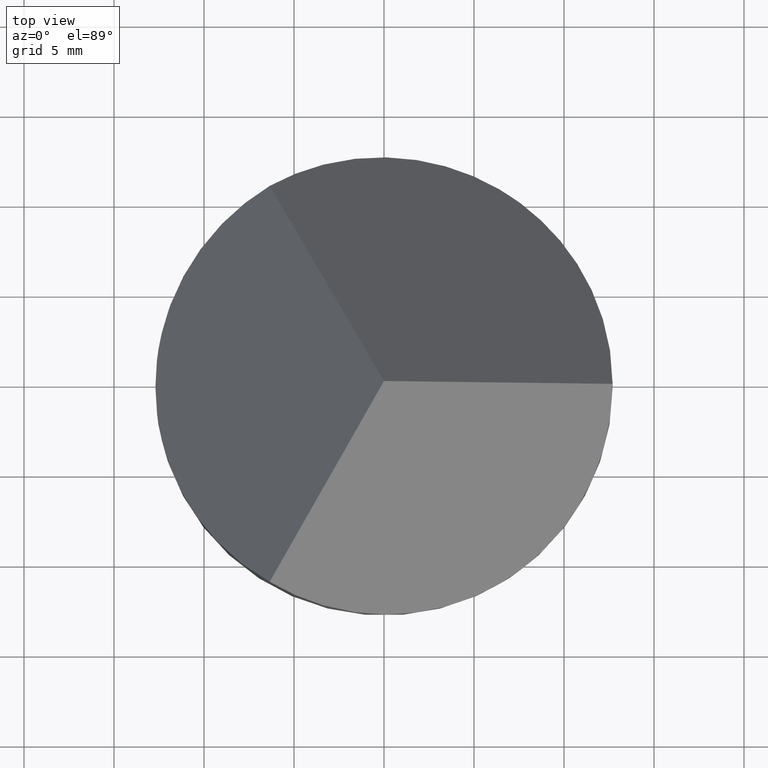
[diagram: clean part render]
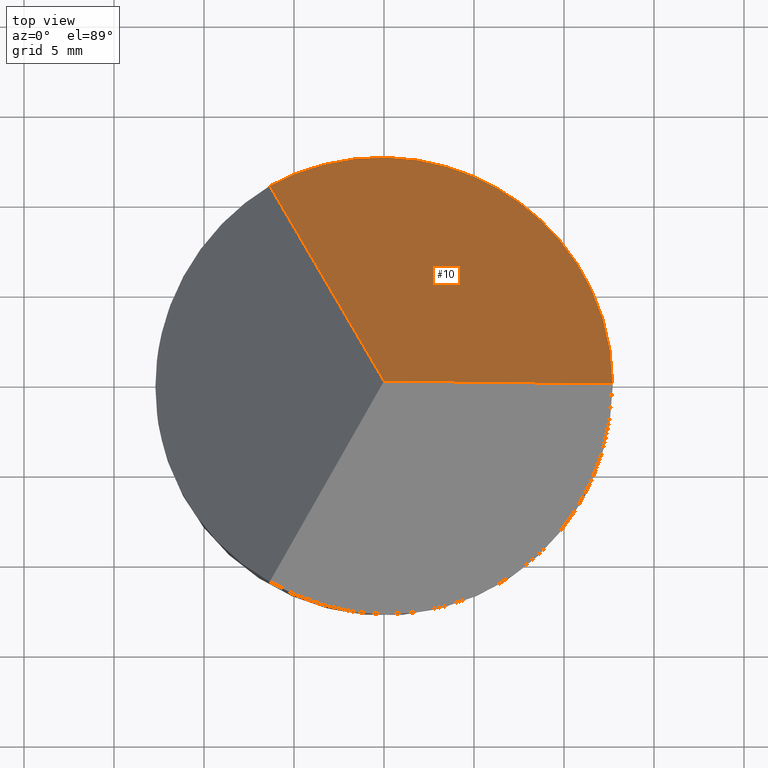
[diagram: same view with one face highlighted and labeled with its STEP entity id]
A machine part, top view. The second image highlights one B-rep face of the part: STEP entity #10.
In plain terms, the highlighted planar face has unit normal (0.4082, 0.7071, 0.5774).
Its self-contained STEP definition (entity closure, byte-faithful):
#10 = ADVANCED_FACE ( 'NONE', ( #264 ), #17, .T. ) ;
#16 = CARTESIAN_POINT ( 'NONE',  ( -6.350000000000017400, 10.99852262806236800, 10.02160896824114100 ) ) ;
#17 = PLANE ( 'NONE',  #119 ) ;
#19 = DIRECTION ( 'NONE',  ( 0.4082200218682777700, 0.7070578185427394100, 0.5774302165486712200 ) ) ;
#21 = DIRECTION ( 'NONE',  ( -0.8165531063768112200, -1.827950131834282300E-016, 0.5772703218305786900 ) ) ;
#35 = LINE ( 'NONE', #55, #161 ) ;
#38 = VERTEX_POINT ( 'NONE', #254 ) ;
#47 = VERTEX_POINT ( 'NONE', #306 ) ;
#48 = CARTESIAN_POINT ( 'NONE',  ( 14.72243186433548900, -8.499999999999966200, 19.00000000000000000 ) ) ;
#55 = CARTESIAN_POINT ( 'NONE',  ( 9.816313587227853100, 1.734723475976807100E-015, 12.06025969476389300 ) ) ;
#89 = VECTOR ( 'NONE', #109, 1000.000000000000000 ) ;
#100 = ORIENTED_EDGE ( 'NONE', *, *, #251, .F. ) ;
#109 = DIRECTION ( 'NONE',  ( 0.4082765531884057200, -0.7071557336614137100, 0.5772703218305811300 ) ) ;
#111 = EDGE_LOOP ( 'NONE', ( #100, #158, #255 ) ) ;
#119 = AXIS2_PLACEMENT_3D ( 'NONE', #48, #19, #307 ) ;
#123 = CARTESIAN_POINT ( 'NONE',  ( 12.70000000000000100, 10.99852262806238200, -3.445977579397081900 ) ) ;
#126 =( BOUNDED_CURVE ( )  B_SPLINE_CURVE ( 3, ( #275, #123, #185, #280 ),
 .UNSPECIFIED., .F., .T. ) 
 B_SPLINE_CURVE_WITH_KNOTS ( ( 4, 4 ),
 ( 5.235987755982986200, 7.330382858376182800 ),
 .UNSPECIFIED. ) 
 CURVE ( )  GEOMETRIC_REPRESENTATION_ITEM ( )  RATIONAL_B_SPLINE_CURVE ( ( 1.000000000000000000, 0.6666666666666663000, 0.6666666666666663000, 1.000000000000000000 ) ) 
 REPRESENTATION_ITEM ( '' )  );
#129 = CARTESIAN_POINT ( 'NONE',  ( 7.073520084914155100, -12.25169617543019900, 29.00139043989909000 ) ) ;
#158 = ORIENTED_EDGE ( 'NONE', *, *, #225, .T. ) ;
#161 = VECTOR ( 'NONE', #21, 1000.000000000000200 ) ;
#175 = VERTEX_POINT ( 'NONE', #16 ) ;
#185 = CARTESIAN_POINT ( 'NONE',  ( 3.174999999999988300, 16.49778394209356900, -3.445977579397109000 ) ) ;
#224 = LINE ( 'NONE', #129, #89 ) ;
#225 = EDGE_CURVE ( 'NONE', #38, #175, #126, .T. ) ;
#251 = EDGE_CURVE ( 'NONE', #38, #47, #35, .T. ) ;
#254 = CARTESIAN_POINT ( 'NONE',  ( 12.70000000000000600, 2.380270583351730600E-015, 10.02160896824120000 ) ) ;
#255 = ORIENTED_EDGE ( 'NONE', *, *, #288, .T. ) ;
#264 = FACE_OUTER_BOUND ( 'NONE', #111, .T. ) ;
#275 = CARTESIAN_POINT ( 'NONE',  ( 12.70000000000000600, 2.380270583351730600E-015, 10.02160896824120000 ) ) ;
#280 = CARTESIAN_POINT ( 'NONE',  ( -6.350000000000017400, 10.99852262806236800, 10.02160896824114100 ) ) ;
#288 = EDGE_CURVE ( 'NONE', #175, #47, #224, .T. ) ;
#306 = CARTESIAN_POINT ( 'NONE',  ( 2.602085213965210600E-015, 2.022940028949129900E-016, 19.00000000000000000 ) ) ;
#307 = DIRECTION ( 'NONE',  ( 0.0000000000000000000, -0.6325343505460013800, 0.7745323075116674600 ) ) ;